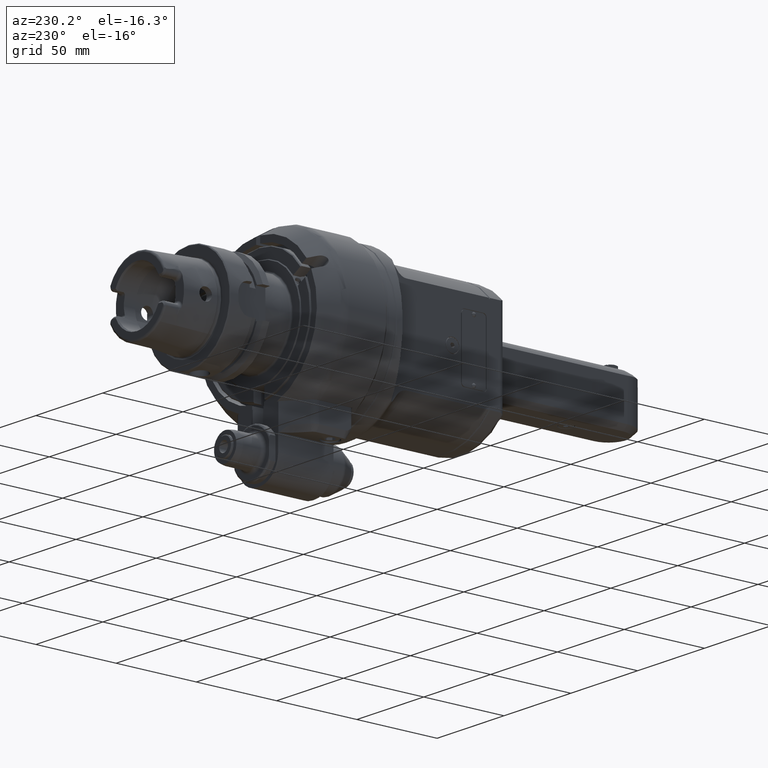
[diagram: clean part render]
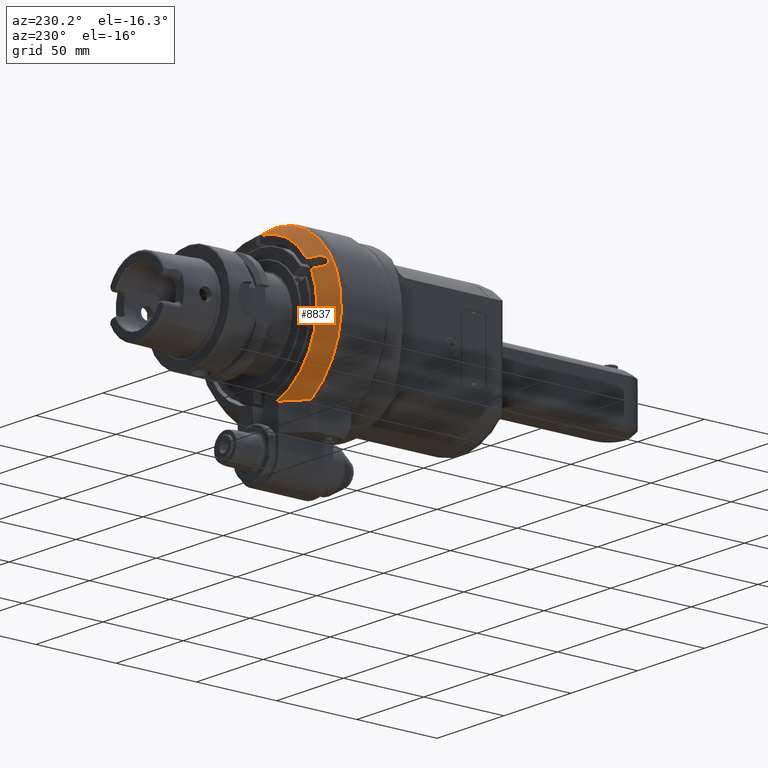
[diagram: same view with one face highlighted and labeled with its STEP entity id]
A machine part, auxiliary view. The second image highlights one B-rep face of the part: STEP entity #8837.
In plain terms, the highlighted conical surface has half-angle 30 deg.
Its self-contained STEP definition (entity closure, byte-faithful):
#154=(
BOUNDED_CURVE()
B_SPLINE_CURVE(2,(#13031,#13032,#13033),.UNSPECIFIED.,.F.,.F.)
B_SPLINE_CURVE_WITH_KNOTS((3,3),(-2.43290769105801,-0.320305328668483),
 .UNSPECIFIED.)
CURVE()
GEOMETRIC_REPRESENTATION_ITEM()
RATIONAL_B_SPLINE_CURVE((1.03252076511009,1.03062027413364,1.00749895945509))
REPRESENTATION_ITEM('')
);
#548=CONICAL_SURFACE('',#9456,46.96410161514,0.523598775598299);
#647=FACE_OUTER_BOUND('',#1190,.T.);
#1190=EDGE_LOOP('',(#6027,#6028,#6029,#6030,#6031,#6032,#6033,#6034));
#1794=CIRCLE('',#9457,49.92820323028);
#1795=CIRCLE('',#9458,44.);
#1796=CIRCLE('',#9459,44.);
#2198=B_SPLINE_CURVE_WITH_KNOTS('',3,(#13152,#13153,#13154,#13155,#13156,
#13157,#13158,#13159,#13160,#13161),.UNSPECIFIED.,.F.,.F.,(4,3,3,4),(0.,
0.3333333333333,0.6666666666667,1.),.UNSPECIFIED.);
#2201=B_SPLINE_CURVE_WITH_KNOTS('',3,(#13214,#13215,#13216,#13217,#13218,
#13219,#13220,#13221,#13222,#13223,#13224,#13225,#13226,#13227,#13228,#13229,
#13230,#13231),.UNSPECIFIED.,.F.,.F.,(4,2,2,2,2,2,2,2,4),(1.11206982951625,
1.24885677734264,1.4029266724495,1.5444028479349,1.68587902342029,1.82735519890569,
1.96883137439109,2.12290126949794,2.25968821732541),.UNSPECIFIED.);
#2203=B_SPLINE_CURVE_WITH_KNOTS('',3,(#13253,#13254,#13255,#13256,#13257,
#13258,#13259,#13260,#13261,#13262),.UNSPECIFIED.,.F.,.F.,(4,3,3,4),(0.,
0.3333333333333,0.6666666666667,1.),.UNSPECIFIED.);
#2204=B_SPLINE_CURVE_WITH_KNOTS('',3,(#13268,#13269,#13270,#13271,#13272,
#13273,#13274,#13275,#13276,#13277),.UNSPECIFIED.,.F.,.F.,(4,3,3,4),(0.,
0.3333333333333,0.6666666666667,1.),.UNSPECIFIED.);
#3671=VERTEX_POINT('',#13019);
#3672=VERTEX_POINT('',#13030);
#3693=VERTEX_POINT('',#13149);
#3694=VERTEX_POINT('',#13151);
#3707=VERTEX_POINT('',#13212);
#3708=VERTEX_POINT('',#13213);
#3712=VERTEX_POINT('',#13252);
#3713=VERTEX_POINT('',#13266);
#4574=EDGE_CURVE('',#3671,#3672,#154,.T.);
#4601=EDGE_CURVE('',#3694,#3693,#2198,.T.);
#4619=EDGE_CURVE('',#3707,#3708,#2201,.F.);
#4626=EDGE_CURVE('',#3707,#3712,#2203,.T.);
#4628=EDGE_CURVE('',#3694,#3671,#1794,.T.);
#4629=EDGE_CURVE('',#3713,#3693,#1795,.T.);
#4630=EDGE_CURVE('',#3713,#3708,#2204,.T.);
#4631=EDGE_CURVE('',#3672,#3712,#1796,.T.);
#6027=ORIENTED_EDGE('',*,*,#4628,.F.);
#6028=ORIENTED_EDGE('',*,*,#4601,.T.);
#6029=ORIENTED_EDGE('',*,*,#4629,.F.);
#6030=ORIENTED_EDGE('',*,*,#4630,.T.);
#6031=ORIENTED_EDGE('',*,*,#4619,.F.);
#6032=ORIENTED_EDGE('',*,*,#4626,.T.);
#6033=ORIENTED_EDGE('',*,*,#4631,.F.);
#6034=ORIENTED_EDGE('',*,*,#4574,.F.);
#8837=ADVANCED_FACE('',(#647),#548,.T.);
#9456=AXIS2_PLACEMENT_3D('',#13264,#10493,#10494);
#9457=AXIS2_PLACEMENT_3D('',#13265,#10495,#10496);
#9458=AXIS2_PLACEMENT_3D('',#13267,#10497,#10498);
#9459=AXIS2_PLACEMENT_3D('',#13278,#10499,#10500);
#10493=DIRECTION('center_axis',(0.,-1.,0.));
#10494=DIRECTION('ref_axis',(0.,0.,1.));
#10495=DIRECTION('center_axis',(0.,-1.,0.));
#10496=DIRECTION('ref_axis',(-0.0300431400080999,0.,0.999548602989596));
#10497=DIRECTION('center_axis',(0.,1.,0.));
#10498=DIRECTION('ref_axis',(-0.823508449688707,0.,0.567304004296905));
#10499=DIRECTION('center_axis',(0.,1.,0.));
#10500=DIRECTION('ref_axis',(-0.315686235979311,0.,-0.948863636363632));
#13019=CARTESIAN_POINT('',(-27.38180011986,29.23205080757,-41.75));
#13030=CARTESIAN_POINT('',(-13.89019438316,39.5,-41.74999999999));
#13031=CARTESIAN_POINT('Ctrl Pts',(-27.3818001198562,29.2320508075673,-41.75));
#13032=CARTESIAN_POINT('Ctrl Pts',(-20.2102413126131,36.0442956678564,-41.75));
#13033=CARTESIAN_POINT('Ctrl Pts',(-13.8901943831554,39.4999999999632,-41.75));
#13149=CARTESIAN_POINT('',(-1.5,39.5,43.97442438509));
#13151=CARTESIAN_POINT('',(-1.50000007595379,29.2320595617708,49.9056607292726));
#13152=CARTESIAN_POINT('Ctrl Pts',(-1.5,29.23206831446,49.90565567486));
#13153=CARTESIAN_POINT('Ctrl Pts',(-1.5,30.37293045262,49.24668115316));
#13154=CARTESIAN_POINT('Ctrl Pts',(-1.5,31.5138242319948,48.5876765558151));
#13155=CARTESIAN_POINT('Ctrl Pts',(-1.5,32.6547122553555,47.928662020786));
#13156=CARTESIAN_POINT('Ctrl Pts',(-1.5,33.7956002787165,47.2696474857567));
#13157=CARTESIAN_POINT('Ctrl Pts',(-1.5,34.9364825460635,46.6106230130433));
#13158=CARTESIAN_POINT('Ctrl Pts',(-1.5,36.077363540237,45.9515842405615));
#13159=CARTESIAN_POINT('Ctrl Pts',(-1.5,37.2182445344102,45.2925454680799));
#13160=CARTESIAN_POINT('Ctrl Pts',(-1.5,38.35912425541,44.63349239583));
#13161=CARTESIAN_POINT('Ctrl Pts',(-1.5,39.5,43.97442438509));
#13212=CARTESIAN_POINT('',(-42.24182743261,34.5,20.34687855495));
#13213=CARTESIAN_POINT('',(-38.74182743261,34.5,26.40905638145));
#13214=CARTESIAN_POINT('Ctrl Pts',(-38.7418274326129,34.5000000000002,26.4090563814456));
#13215=CARTESIAN_POINT('Ctrl Pts',(-38.9427838572518,34.0992085079157,26.5250786273062));
#13216=CARTESIAN_POINT('Ctrl Pts',(-39.1945532832522,33.6780271021362,26.5877455833705));
#13217=CARTESIAN_POINT('Ctrl Pts',(-39.7934207779667,32.8336229766582,26.5711996809164));
#13218=CARTESIAN_POINT('Ctrl Pts',(-40.1489075806805,32.416786404141,26.4721822625297));
#13219=CARTESIAN_POINT('Ctrl Pts',(-40.8117265913294,31.7689100689263,26.1383338430384));
#13220=CARTESIAN_POINT('Ctrl Pts',(-41.1623315039927,31.4858969585476,25.8928265156274));
#13221=CARTESIAN_POINT('Ctrl Pts',(-41.8163473322267,31.1011571537054,25.2551263794943));
#13222=CARTESIAN_POINT('Ctrl Pts',(-42.1193241407055,31.,24.8621451840586));
#13223=CARTESIAN_POINT('Ctrl Pts',(-42.5909113923235,31.,24.0453321040545));
#13224=CARTESIAN_POINT('Ctrl Pts',(-42.779754686541,31.1011571537054,23.5864558934365));
#13225=CARTESIAN_POINT('Ctrl Pts',(-43.0050112903121,31.4858969585476,22.7012115036422));
#13226=CARTESIAN_POINT('Ctrl Pts',(-43.0423244163336,31.7689100689263,22.2748250788787));
#13227=CARTESIAN_POINT('Ctrl Pts',(-43.000036123302,32.416786404141,21.5338827677997));
#13228=CARTESIAN_POINT('Ctrl Pts',(-42.908044321685,32.8336229766582,21.1765134567462));
#13229=CARTESIAN_POINT('Ctrl Pts',(-42.6229397461805,33.6780271021394,20.6496060415937));
#13230=CARTESIAN_POINT('Ctrl Pts',(-42.4427838572491,34.0992085079223,20.4629008008123));
#13231=CARTESIAN_POINT('Ctrl Pts',(-42.2418274326083,34.5000000000096,20.3468785549518));
#13252=CARTESIAN_POINT('',(-39.7343717863,39.5,18.89919836257));
#13253=CARTESIAN_POINT('Ctrl Pts',(-42.2418274326133,34.5000000000021,20.3468785549516));
#13254=CARTESIAN_POINT('Ctrl Pts',(-41.9632683989681,35.0555636796788,20.1860524218991));
#13255=CARTESIAN_POINT('Ctrl Pts',(-41.6846944543344,35.6111251834313,20.0252176577258));
#13256=CARTESIAN_POINT('Ctrl Pts',(-41.4061048113106,36.1666839961781,19.864373839952));
#13257=CARTESIAN_POINT('Ctrl Pts',(-41.1275151682867,36.7222428089251,19.7035300221781));
#13258=CARTESIAN_POINT('Ctrl Pts',(-40.8489098273047,37.2777989309903,19.5426771511998));
#13259=CARTESIAN_POINT('Ctrl Pts',(-40.5702879469552,37.8333517949414,19.381814745264));
#13260=CARTESIAN_POINT('Ctrl Pts',(-40.2916660666057,38.3889046588924,19.2209523393283));
#13261=CARTESIAN_POINT('Ctrl Pts',(-40.0130276473512,38.9444542651007,19.0600803989606));
#13262=CARTESIAN_POINT('Ctrl Pts',(-39.7343717863022,39.5000000000014,18.8991983625711));
#13264=CARTESIAN_POINT('Origin',(0.,34.36602540378,0.));
#13265=CARTESIAN_POINT('Origin',(0.,29.23205080757,0.));
#13266=CARTESIAN_POINT('',(-36.2343717863,39.5,24.96137618907));
#13267=CARTESIAN_POINT('Origin',(0.,39.5,0.));
#13268=CARTESIAN_POINT('Ctrl Pts',(-36.2343717862992,39.4999999999995,24.9613761890695));
#13269=CARTESIAN_POINT('Ctrl Pts',(-36.5130276473516,38.9444542651011,25.1222582254511));
#13270=CARTESIAN_POINT('Ctrl Pts',(-36.7916660440905,38.3889046588926,25.2831302048165));
#13271=CARTESIAN_POINT('Ctrl Pts',(-37.070287914319,37.8333517949412,25.4439926282826));
#13272=CARTESIAN_POINT('Ctrl Pts',(-37.3489097845476,37.2777989309897,25.6048550517487));
#13273=CARTESIAN_POINT('Ctrl Pts',(-37.6275151275794,36.7222428089239,25.7657079191777));
#13274=CARTESIAN_POINT('Ctrl Pts',(-37.9061047813243,36.166683996177,25.9265517183818));
#13275=CARTESIAN_POINT('Ctrl Pts',(-38.1846944350692,35.6111251834304,26.0873955175858));
#13276=CARTESIAN_POINT('Ctrl Pts',(-38.4632683989682,35.0555636796788,26.2482302483888));
#13277=CARTESIAN_POINT('Ctrl Pts',(-38.74182743261,34.5,26.40905638145));
#13278=CARTESIAN_POINT('Origin',(0.,39.5,0.));